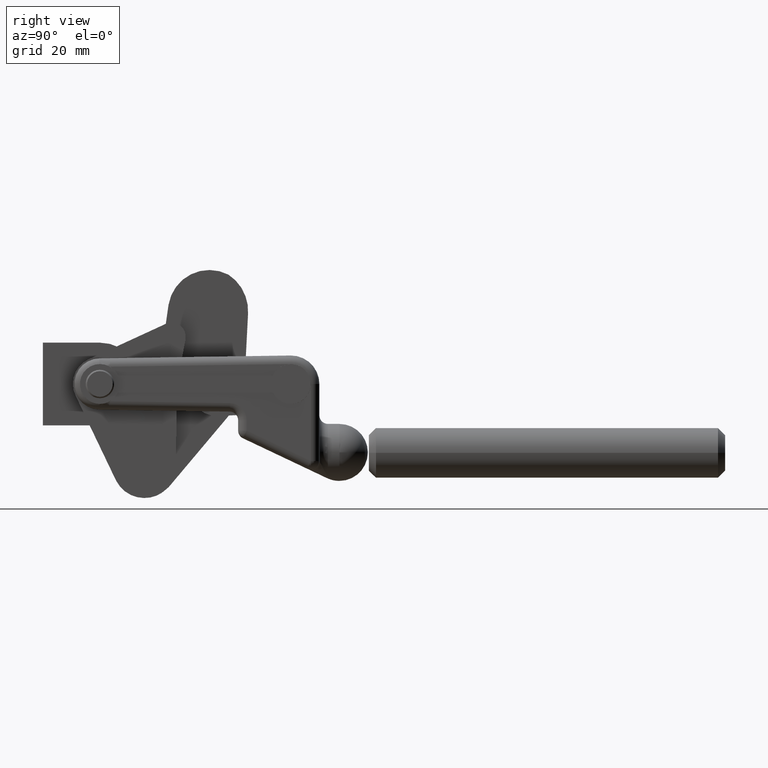
[diagram: clean part render]
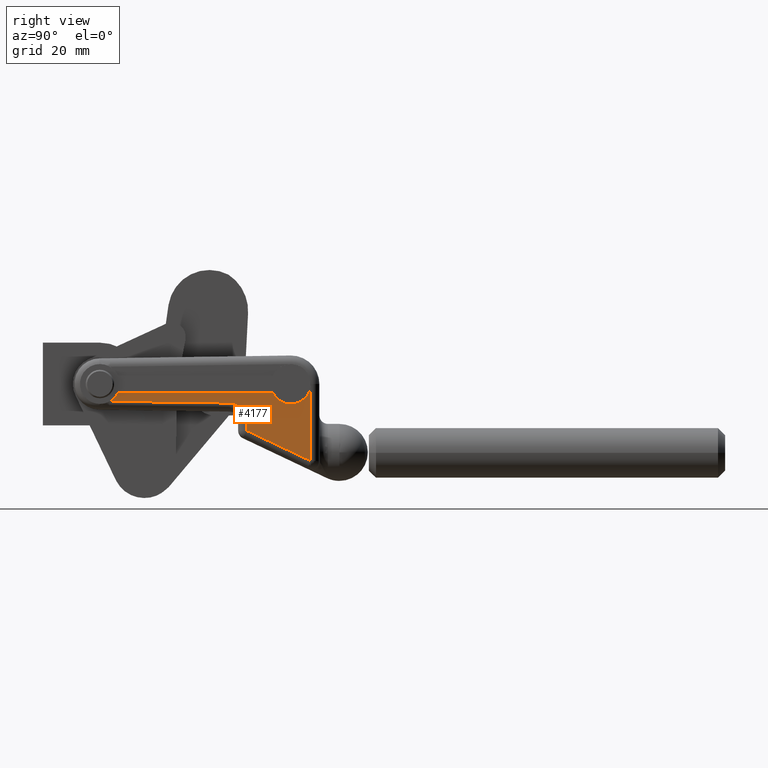
[diagram: same view with one face highlighted and labeled with its STEP entity id]
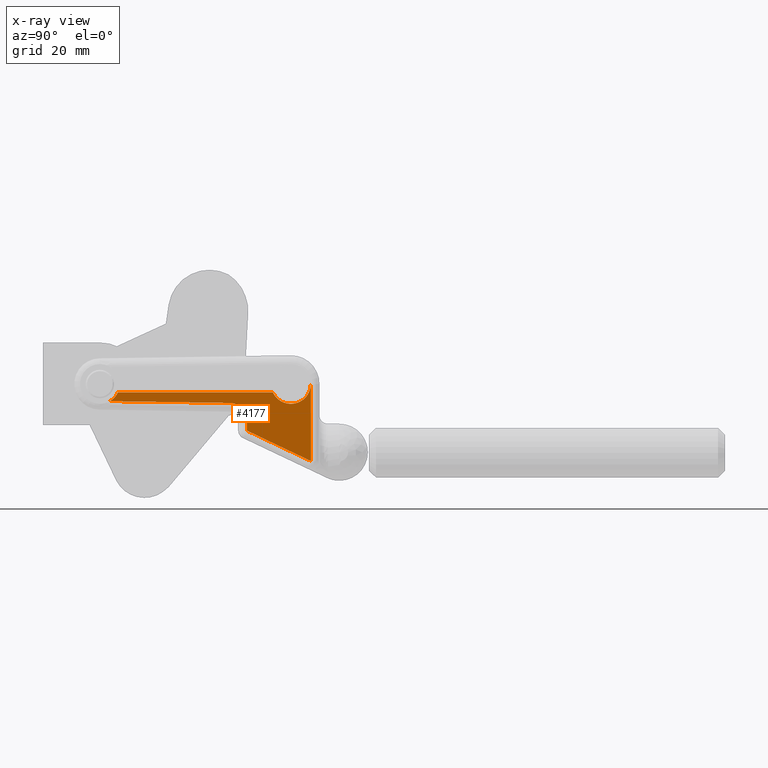
[diagram: x-ray of the same camera — body ghosted, the highlighted face saturated]
A machine part, right view. The second image highlights one B-rep face of the part: STEP entity #4177.
The next image is the same camera in x-ray: the body ghosted, the highlighted face saturated — about 0% of this face is hidden behind the body in this view.
In plain terms, the highlighted planar face has unit normal (1, 0, 0).
Its self-contained STEP definition (entity closure, byte-faithful):
#154 = DIRECTION ( 'NONE',  ( 0.0000000000000000000, 0.0000000000000000000, -1.000000000000000000 ) ) ;
#160 = CARTESIAN_POINT ( 'NONE',  ( 18.00000000000000000, 71.50000000000002800, -16.34202056185045400 ) ) ;
#201 = AXIS2_PLACEMENT_3D ( 'NONE', #5765, #557, #6335 ) ;
#293 = EDGE_CURVE ( 'NONE', #3122, #2118, #3155, .T. ) ;
#307 = VECTOR ( 'NONE', #5380, 1000.000000000000000 ) ;
#324 = VERTEX_POINT ( 'NONE', #3781 ) ;
#376 = EDGE_CURVE ( 'NONE', #378, #6369, #6452, .T. ) ;
#378 = VERTEX_POINT ( 'NONE', #4413 ) ;
#447 = EDGE_CURVE ( 'NONE', #2118, #2116, #2153, .T. ) ;
#540 = CARTESIAN_POINT ( 'NONE',  ( 18.00000000000000000, 71.50000000000001400, -16.34202056185044000 ) ) ;
#557 = DIRECTION ( 'NONE',  ( -1.000000000000000000, -0.0000000000000000000, -0.0000000000000000000 ) ) ;
#563 = ORIENTED_EDGE ( 'NONE', *, *, #1215, .T. ) ;
#706 = DIRECTION ( 'NONE',  ( -1.000000000000000000, -0.0000000000000000000, -0.0000000000000000000 ) ) ;
#880 = DIRECTION ( 'NONE',  ( -1.000000000000000000, -0.0000000000000000000, -0.0000000000000000000 ) ) ;
#908 = CIRCLE ( 'NONE', #201, 7.000000000000002700 ) ;
#1100 = DIRECTION ( 'NONE',  ( 0.0000000000000000000, -1.000000000000000000, -7.181350419389317800E-017 ) ) ;
#1109 = PLANE ( 'NONE',  #6417 ) ;
#1215 = EDGE_CURVE ( 'NONE', #2116, #324, #3148, .T. ) ;
#1394 = AXIS2_PLACEMENT_3D ( 'NONE', #5382, #1715, #4440 ) ;
#1661 = AXIS2_PLACEMENT_3D ( 'NONE', #2843, #880, #4466 ) ;
#1715 = DIRECTION ( 'NONE',  ( -1.000000000000000000, -0.0000000000000000000, -0.0000000000000000000 ) ) ;
#1839 = LINE ( 'NONE', #1896, #3108 ) ;
#1896 = CARTESIAN_POINT ( 'NONE',  ( 18.00000000000000000, 65.50000000000000000, -3.000000000000011100 ) ) ;
#1935 = LINE ( 'NONE', #5911, #4935 ) ;
#1941 = CARTESIAN_POINT ( 'NONE',  ( 18.00000000000000000, 23.51559741579625000, -6.053145860628748500 ) ) ;
#1948 = EDGE_CURVE ( 'NONE', #6569, #4985, #3021, .T. ) ;
#2072 = VECTOR ( 'NONE', #4642, 1000.000000000000000 ) ;
#2116 = VERTEX_POINT ( 'NONE', #5155 ) ;
#2118 = VERTEX_POINT ( 'NONE', #1941 ) ;
#2153 = LINE ( 'NONE', #4992, #2925 ) ;
#2324 = DIRECTION ( 'NONE',  ( -0.0000000000000000000, 0.9036329227011665700, -0.4283077643594004900 ) ) ;
#2335 = EDGE_CURVE ( 'NONE', #5527, #378, #1935, .T. ) ;
#2398 = CARTESIAN_POINT ( 'NONE',  ( 18.00000000000000000, 87.00000000000001400, -6.559423143537301800E-015 ) ) ;
#2464 = DIRECTION ( 'NONE',  ( -0.0000000000000000000, 0.9998886104145807700, -0.01492537313432836300 ) ) ;
#2488 = ORIENTED_EDGE ( 'NONE', *, *, #3530, .T. ) ;
#2586 = ORIENTED_EDGE ( 'NONE', *, *, #3501, .T. ) ;
#2614 = ORIENTED_EDGE ( 'NONE', *, *, #6309, .T. ) ;
#2843 = CARTESIAN_POINT ( 'NONE',  ( 18.00000000000000000, 20.00000000000000700, -6.559423143537301800E-015 ) ) ;
#2925 = VECTOR ( 'NONE', #2464, 999.9999999999998900 ) ;
#2975 = CARTESIAN_POINT ( 'NONE',  ( 18.00000000000000000, 94.00000000000001400, -12.68051695513847200 ) ) ;
#3021 = CIRCLE ( 'NONE', #3527, 7.000000000000002700 ) ;
#3108 = VECTOR ( 'NONE', #1100, 1000.000000000000000 ) ;
#3122 = VERTEX_POINT ( 'NONE', #4302 ) ;
#3148 = CIRCLE ( 'NONE', #1394, 6.000000000000001800 ) ;
#3155 = CIRCLE ( 'NONE', #1661, 7.000000000000005300 ) ;
#3288 = ORIENTED_EDGE ( 'NONE', *, *, #376, .T. ) ;
#3501 = EDGE_CURVE ( 'NONE', #4985, #3122, #1839, .T. ) ;
#3527 = AXIS2_PLACEMENT_3D ( 'NONE', #2398, #706, #4208 ) ;
#3530 = EDGE_CURVE ( 'NONE', #324, #5527, #5737, .T. ) ;
#3712 = ORIENTED_EDGE ( 'NONE', *, *, #293, .T. ) ;
#3781 = CARTESIAN_POINT ( 'NONE',  ( 18.00000000000000000, 71.50000000000001400, -12.68051695513850600 ) ) ;
#3839 = DIRECTION ( 'NONE',  ( 1.000000000000000000, 0.0000000000000000000, 0.0000000000000000000 ) ) ;
#3937 = ORIENTED_EDGE ( 'NONE', *, *, #2335, .T. ) ;
#4177 = ADVANCED_FACE ( 'NONE', ( #4340 ), #1109, .T. ) ;
#4208 = DIRECTION ( 'NONE',  ( 0.0000000000000000000, 0.0000000000000000000, -1.000000000000000000 ) ) ;
#4302 = CARTESIAN_POINT ( 'NONE',  ( 18.00000000000000000, 26.32455532033676700, -3.000000000000013300 ) ) ;
#4340 = FACE_OUTER_BOUND ( 'NONE', #6708, .T. ) ;
#4413 = CARTESIAN_POINT ( 'NONE',  ( 18.00000000000000000, 94.00000000000001400, -27.00666596817266200 ) ) ;
#4440 = DIRECTION ( 'NONE',  ( 0.0000000000000000000, 0.0000000000000000000, -1.000000000000000000 ) ) ;
#4466 = DIRECTION ( 'NONE',  ( 0.0000000000000000000, 0.0000000000000000000, -1.000000000000000000 ) ) ;
#4642 = DIRECTION ( 'NONE',  ( -0.0000000000000000000, -4.371156300724550900E-016, 1.000000000000000000 ) ) ;
#4844 = CARTESIAN_POINT ( 'NONE',  ( 18.00000000000000000, 94.00000000000001400, -3.499613733030115900E-015 ) ) ;
#4935 = VECTOR ( 'NONE', #2324, 999.9999999999998900 ) ;
#4985 = VERTEX_POINT ( 'NONE', #5627 ) ;
#4992 = CARTESIAN_POINT ( 'NONE',  ( 18.00000000000000000, 65.58955223880596500, -6.681185292651000500 ) ) ;
#5155 = CARTESIAN_POINT ( 'NONE',  ( 18.00000000000000000, 65.58955223880592200, -6.681185292650997800 ) ) ;
#5380 = DIRECTION ( 'NONE',  ( 0.0000000000000000000, 0.0000000000000000000, -1.000000000000000000 ) ) ;
#5382 = CARTESIAN_POINT ( 'NONE',  ( 18.00000000000000000, 65.50000000000000000, -12.68051695513848500 ) ) ;
#5397 = CARTESIAN_POINT ( 'NONE',  ( 18.00000000000000000, 65.50000000000000000, -12.68051695513848500 ) ) ;
#5527 = VERTEX_POINT ( 'NONE', #160 ) ;
#5535 = ORIENTED_EDGE ( 'NONE', *, *, #447, .T. ) ;
#5627 = CARTESIAN_POINT ( 'NONE',  ( 18.00000000000000000, 80.67544467966325800, -3.000000000000009300 ) ) ;
#5737 = LINE ( 'NONE', #540, #307 ) ;
#5765 = CARTESIAN_POINT ( 'NONE',  ( 18.00000000000000000, 87.00000000000001400, -6.559423143537301800E-015 ) ) ;
#5911 = CARTESIAN_POINT ( 'NONE',  ( 18.00000000000000000, 65.18356253191066700, -13.34812874725576200 ) ) ;
#5989 = CARTESIAN_POINT ( 'NONE',  ( 18.00000000000000000, 87.00000000000001400, -7.000000000000009800 ) ) ;
#6309 = EDGE_CURVE ( 'NONE', #6369, #6569, #908, .T. ) ;
#6335 = DIRECTION ( 'NONE',  ( 0.0000000000000000000, 1.982541115402064500E-015, -1.000000000000000000 ) ) ;
#6369 = VERTEX_POINT ( 'NONE', #4844 ) ;
#6417 = AXIS2_PLACEMENT_3D ( 'NONE', #5397, #3839, #154 ) ;
#6452 = LINE ( 'NONE', #2975, #2072 ) ;
#6569 = VERTEX_POINT ( 'NONE', #5989 ) ;
#6706 = ORIENTED_EDGE ( 'NONE', *, *, #1948, .T. ) ;
#6708 = EDGE_LOOP ( 'NONE', ( #3712, #5535, #563, #2488, #3937, #3288, #2614, #6706, #2586 ) ) ;